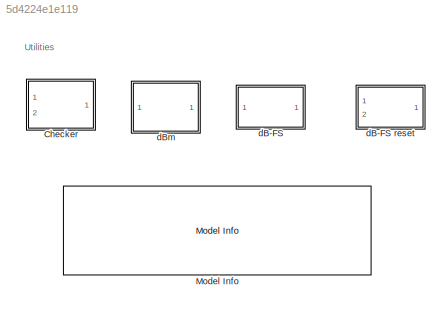
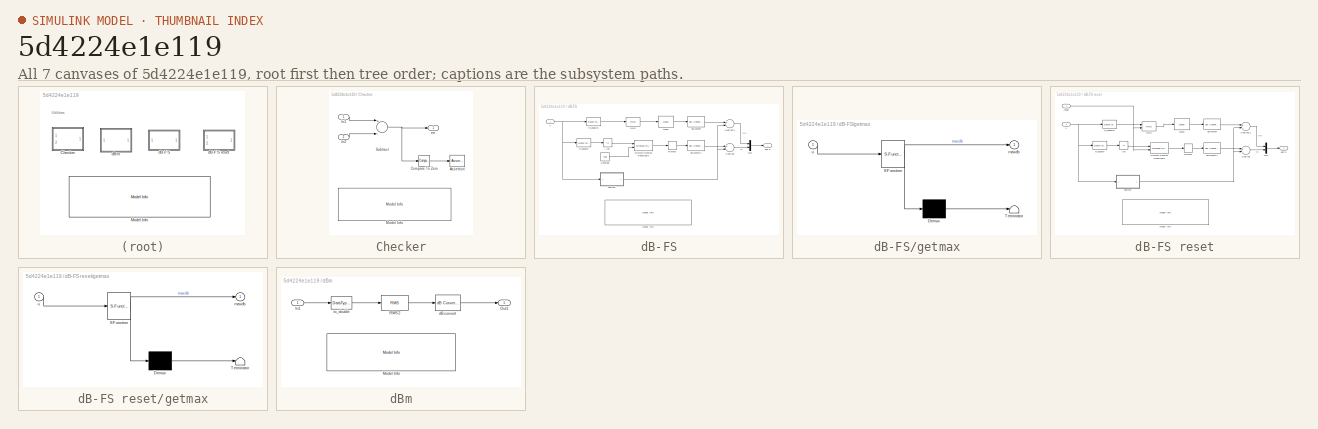
[diagram: thumbnail index - all 7 canvases of the model, root first then tree order]
MODEL slx_5d4224e1e119
KIND library
CONFIG AbsTol = auto
CONFIG EnableMultiTasking = on
CONFIG FixedStep = auto
CONFIG MaxStep = auto
CONFIG MinStep = auto
CONFIG RelTol = 1e-3
CONFIG SampleTimeConstraint = Unconstrained
CONFIG Solver = ode45
CONFIG SolverName = ode45
CONFIG StartTime = 0.0
CONFIG StopTime = 10.0
BLOCK [SubSystem] Checker
  Ports = [2, 1]
  RequestExecContextInheritance = off
BLOCK [Assertion] Checker/Assertion
  AttributesFormatString = %<BlockType>\n%<StopWhenAssertionFail>
BLOCK [Reference] Checker/Compare To Zero  REF=simulink/Logic and Bit
Operations/Compare
To Zero
  Ports = [1, 1]
  SourceBlock = simulink/Logic and Bit\nOperations/Compare\nTo Zero
  SourceProductBaseCode = SL
  SourceProductName = Simulink
  SourceType = Compare To Zero
BLOCK [Inport] Checker/In1
  IconDisplay = Port number
BLOCK [Inport] Checker/In2
  IconDisplay = Port number
  Port = 2
BLOCK [Reference] Checker/Model Info  REF=simulink/Model-Wide
Utilities/Model Info
  Ports = []
  SourceBlock = simulink/Model-Wide\nUtilities/Model Info
  SourceProductBaseCode = SL
  SourceProductName = Simulink
  SourceType = CMBlock
BLOCK [Sum] Checker/Subtract
  InputSameDT = off
  Inputs = +-
  OutDataTypeStr = Inherit: Inherit via internal rule
  Ports = [2, 1]
  SaturateOnIntegerOverflow = off
BLOCK [Outport] Checker/err
  IconDisplay = Port number
BLOCK [Reference] Model Info  REF=simulink/Model-Wide
Utilities/Model Info
  Ports = []
  SourceBlock = simulink/Model-Wide\nUtilities/Model Info
  SourceProductBaseCode = SL
  SourceProductName = Simulink
  SourceType = CMBlock
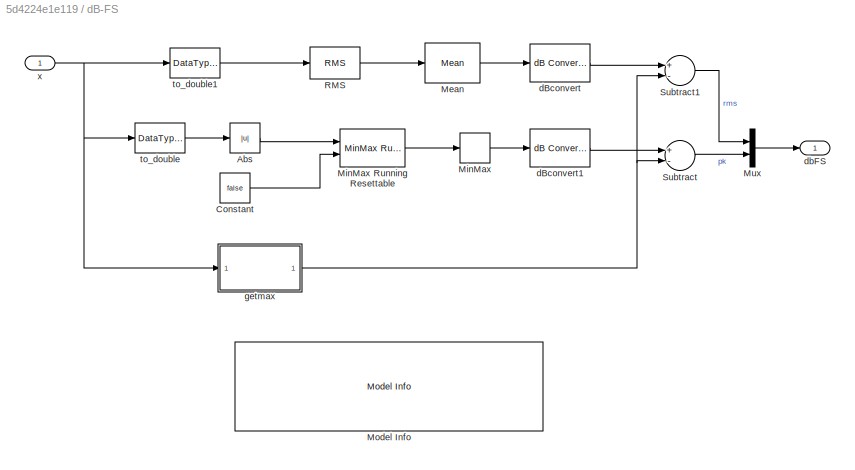
BLOCK [SubSystem] dB-FS
  PermitHierarchicalResolution = None
  Ports = [1, 1]
  RequestExecContextInheritance = off
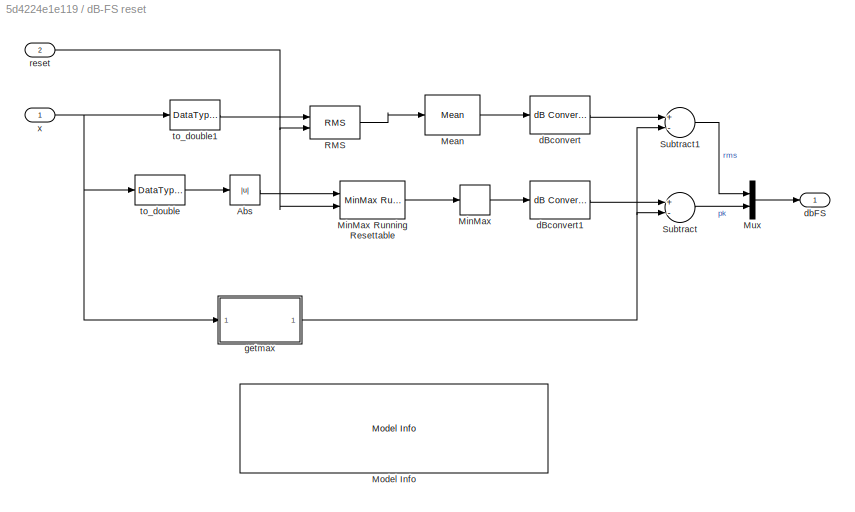
BLOCK [SubSystem] dB-FS reset
  PermitHierarchicalResolution = None
  Ports = [2, 1]
  RequestExecContextInheritance = off
BLOCK [Abs] dB-FS reset/Abs
  SaturateOnIntegerOverflow = off
BLOCK [Reference] dB-FS reset/Mean  REF=dspstat3/Mean
  Ports = [1, 1]
  SourceBlock = dspstat3/Mean
  SourceProductBaseCode = DS
  SourceProductName = DSP System Toolbox
  SourceType = Mean
  UserDataPersistent = on
BLOCK [MinMax] dB-FS reset/MinMax
  Function = max
  InputSameDT = off
  Ports = [1, 1]
  SaturateOnIntegerOverflow = off
BLOCK [Reference] dB-FS reset/MinMax Running Resettable  REF=simulink/Math
Operations/MinMax
Running
Resettable
  Ports = [2, 1]
  SourceBlock = simulink/Math\nOperations/MinMax\nRunning\nResettable
  SourceProductBaseCode = SL
  SourceProductName = Simulink
  SourceType = MinMax Running Resettable
BLOCK [Reference] dB-FS reset/Model Info  REF=simulink/Model-Wide
Utilities/Model Info
  Ports = []
  SourceBlock = simulink/Model-Wide\nUtilities/Model Info
  SourceProductBaseCode = SL
  SourceProductName = Simulink
  SourceType = CMBlock
BLOCK [Mux] dB-FS reset/Mux
  DisplayOption = bar
  Inputs = 2
  Ports = [2, 1]
BLOCK [Reference] dB-FS reset/RMS  REF=dspstat3/RMS
  Ports = [2, 1]
  SourceBlock = dspstat3/RMS
  SourceProductBaseCode = DS
  SourceProductName = DSP System Toolbox
  SourceType = RMS
  UserDataPersistent = on
BLOCK [Sum] dB-FS reset/Subtract
  InputSameDT = off
  Inputs = +-
  OutDataTypeStr = Inherit: Inherit via internal rule
  Ports = [2, 1]
  SaturateOnIntegerOverflow = off
BLOCK [Sum] dB-FS reset/Subtract1
  InputSameDT = off
  Inputs = +-
  OutDataTypeStr = Inherit: Inherit via internal rule
  Ports = [2, 1]
  SaturateOnIntegerOverflow = off
BLOCK [Reference] dB-FS reset/dBconvert  REF=dspmathops/dB Conversion
  Ports = [1, 1]
  SourceBlock = dspmathops/dB Conversion
  SourceProductBaseCode = DS
  SourceProductName = DSP System Toolbox
  SourceType = dB Conversion
BLOCK [Reference] dB-FS reset/dBconvert1  REF=dspmathops/dB Conversion
  Ports = [1, 1]
  SourceBlock = dspmathops/dB Conversion
  SourceProductBaseCode = DS
  SourceProductName = DSP System Toolbox
  SourceType = dB Conversion
BLOCK [Outport] dB-FS reset/dbFS
  IconDisplay = Port number
BLOCK [SubSystem] dB-FS reset/getmax
  ErrorFcn = Stateflow.Translate.translate
  PermitHierarchicalResolution = ExplicitOnly
  Ports = [1, 1]
  RequestExecContextInheritance = off
  SFBlockType = MATLAB Function
  TreatAsAtomicUnit = on
BLOCK [Demux] dB-FS reset/getmax/ Demux 
  Outputs = 1
  Ports = [1, 1]
BLOCK [S-Function] dB-FS reset/getmax/ SFunction 
  EnableBusSupport = off
  FunctionName = sf_sfun
  PortCounts = [1 2]
  Ports = [1, 2]
  SFcnIsStateOwnerBlock = off
  SFunctionDeploymentMode = off
  Tag = Stateflow S-Function 1
BLOCK [Terminator] dB-FS reset/getmax/ Terminator 
BLOCK [Outport] dB-FS reset/getmax/maxdb
  IconDisplay = Port number
BLOCK [Inport] dB-FS reset/getmax/u
  IconDisplay = Port number
BLOCK [Inport] dB-FS reset/reset
  IconDisplay = Port number
  Port = 2
BLOCK [DataTypeConversion] dB-FS reset/to_double
  OutDataTypeStr = double
  RndMeth = Floor
  SaturateOnIntegerOverflow = off
BLOCK [DataTypeConversion] dB-FS reset/to_double1
  OutDataTypeStr = double
  RndMeth = Floor
  SaturateOnIntegerOverflow = off
BLOCK [Inport] dB-FS reset/x
  IconDisplay = Port number
BLOCK [Abs] dB-FS/Abs
  SaturateOnIntegerOverflow = off
BLOCK [Constant] dB-FS/Constant
  SampleTime = -1
  Value = false
BLOCK [Reference] dB-FS/Mean  REF=dspstat3/Mean
  Ports = [1, 1]
  SourceBlock = dspstat3/Mean
  SourceProductBaseCode = DS
  SourceProductName = DSP System Toolbox
  SourceType = Mean
  UserDataPersistent = on
BLOCK [MinMax] dB-FS/MinMax
  Function = max
  InputSameDT = off
  Ports = [1, 1]
  SaturateOnIntegerOverflow = off
BLOCK [Reference] dB-FS/MinMax Running Resettable  REF=simulink/Math
Operations/MinMax
Running
Resettable
  Ports = [2, 1]
  SourceBlock = simulink/Math\nOperations/MinMax\nRunning\nResettable
  SourceProductBaseCode = SL
  SourceProductName = Simulink
  SourceType = MinMax Running Resettable
BLOCK [Reference] dB-FS/Model Info  REF=simulink/Model-Wide
Utilities/Model Info
  Ports = []
  SourceBlock = simulink/Model-Wide\nUtilities/Model Info
  SourceProductBaseCode = SL
  SourceProductName = Simulink
  SourceType = CMBlock
BLOCK [Mux] dB-FS/Mux
  DisplayOption = bar
  Inputs = 2
  Ports = [2, 1]
BLOCK [Reference] dB-FS/RMS  REF=dspstat3/RMS
  Ports = [1, 1]
  SourceBlock = dspstat3/RMS
  SourceProductBaseCode = DS
  SourceProductName = DSP System Toolbox
  SourceType = RMS
  UserDataPersistent = on
BLOCK [Sum] dB-FS/Subtract
  InputSameDT = off
  Inputs = +-
  OutDataTypeStr = Inherit: Inherit via internal rule
  Ports = [2, 1]
  SaturateOnIntegerOverflow = off
BLOCK [Sum] dB-FS/Subtract1
  InputSameDT = off
  Inputs = +-
  OutDataTypeStr = Inherit: Inherit via internal rule
  Ports = [2, 1]
  SaturateOnIntegerOverflow = off
BLOCK [Reference] dB-FS/dBconvert  REF=dspmathops/dB Conversion
  Ports = [1, 1]
  SourceBlock = dspmathops/dB Conversion
  SourceProductBaseCode = DS
  SourceProductName = DSP System Toolbox
  SourceType = dB Conversion
BLOCK [Reference] dB-FS/dBconvert1  REF=dspmathops/dB Conversion
  Ports = [1, 1]
  SourceBlock = dspmathops/dB Conversion
  SourceProductBaseCode = DS
  SourceProductName = DSP System Toolbox
  SourceType = dB Conversion
BLOCK [Outport] dB-FS/dbFS
  IconDisplay = Port number
BLOCK [SubSystem] dB-FS/getmax
  ErrorFcn = Stateflow.Translate.translate
  PermitHierarchicalResolution = ExplicitOnly
  Ports = [1, 1]
  RequestExecContextInheritance = off
  SFBlockType = MATLAB Function
  TreatAsAtomicUnit = on
BLOCK [Demux] dB-FS/getmax/ Demux 
  Outputs = 1
  Ports = [1, 1]
BLOCK [S-Function] dB-FS/getmax/ SFunction 
  EnableBusSupport = off
  FunctionName = sf_sfun
  PortCounts = [1 2]
  Ports = [1, 2]
  SFcnIsStateOwnerBlock = off
  SFunctionDeploymentMode = off
  Tag = Stateflow S-Function 4
BLOCK [Terminator] dB-FS/getmax/ Terminator 
BLOCK [Outport] dB-FS/getmax/maxdb
  IconDisplay = Port number
BLOCK [Inport] dB-FS/getmax/u
  IconDisplay = Port number
BLOCK [DataTypeConversion] dB-FS/to_double
  OutDataTypeStr = double
  RndMeth = Floor
  SaturateOnIntegerOverflow = off
BLOCK [DataTypeConversion] dB-FS/to_double1
  OutDataTypeStr = double
  RndMeth = Floor
  SaturateOnIntegerOverflow = off
BLOCK [Inport] dB-FS/x
  IconDisplay = Port number
BLOCK [SubSystem] dBm
  PermitHierarchicalResolution = None
  Ports = [1, 1]
  RequestExecContextInheritance = off
BLOCK [Inport] dBm/In1
  IconDisplay = Port number
BLOCK [Reference] dBm/Model Info  REF=simulink/Model-Wide
Utilities/Model Info
  Ports = []
  SourceBlock = simulink/Model-Wide\nUtilities/Model Info
  SourceProductBaseCode = SL
  SourceProductName = Simulink
  SourceType = CMBlock
BLOCK [Outport] dBm/Out1
  IconDisplay = Port number
BLOCK [Reference] dBm/RMS2  REF=dspstat3/RMS
  Ports = [1, 1]
  SourceBlock = dspstat3/RMS
  SourceProductBaseCode = DS
  SourceProductName = DSP System Toolbox
  SourceType = RMS
  UserDataPersistent = on
BLOCK [Reference] dBm/dBconvert  REF=dspmathops/dB Conversion
  Ports = [1, 1]
  SourceBlock = dspmathops/dB Conversion
  SourceProductBaseCode = DS
  SourceProductName = DSP System Toolbox
  SourceType = dB Conversion
BLOCK [DataTypeConversion] dBm/to_double
  OutDataTypeStr = double
  RndMeth = Floor
  SaturateOnIntegerOverflow = off
ANNOTATION (root): Utilities
CHART dB-FS reset/getmax states=1 transitions=1
  STATE_LABEL 'eML_blk_kernel()'
  STATE_LABEL "SCRIPT:\nfunction maxdb  = fcn(u)\n\npersistent proto;\npersistent maxmag_dB;\n\nif isempty(proto)\n    % Hack so block doesn't bomb when floating point.\n    if ~isfloat(u)\n        nt_in = numerictype(u);\n    else\n        nt_in = numerictype(fi(0,0,16,0));\n    end        \n    proto = fi(0, nt_in);\n    hi = upperbound(proto);\n    lo = lowerbound(proto); \n    maxmag = double(max(abs(hi),abs(lo)));\n    maxm...<+54ch>"
CHART dB-FS/getmax states=1 transitions=1
  STATE_LABEL 'eML_blk_kernel()'
  STATE_LABEL "SCRIPT:\nfunction maxdb  = fcn(u)\n\npersistent proto;\npersistent maxmag_dB;\n\nif isempty(proto)\n    % Hack so block doesn't bomb when floating point.\n    if ~isfloat(u)\n        nt_in = numerictype(u);\n    else\n        nt_in = numerictype(fi(0,0,16,0));\n    end        \n    proto = fi(0, nt_in);\n    hi = upperbound(proto);\n    lo = lowerbound(proto); \n    maxmag = double(max(abs(hi),abs(lo)));\n    maxm...<+54ch>"
